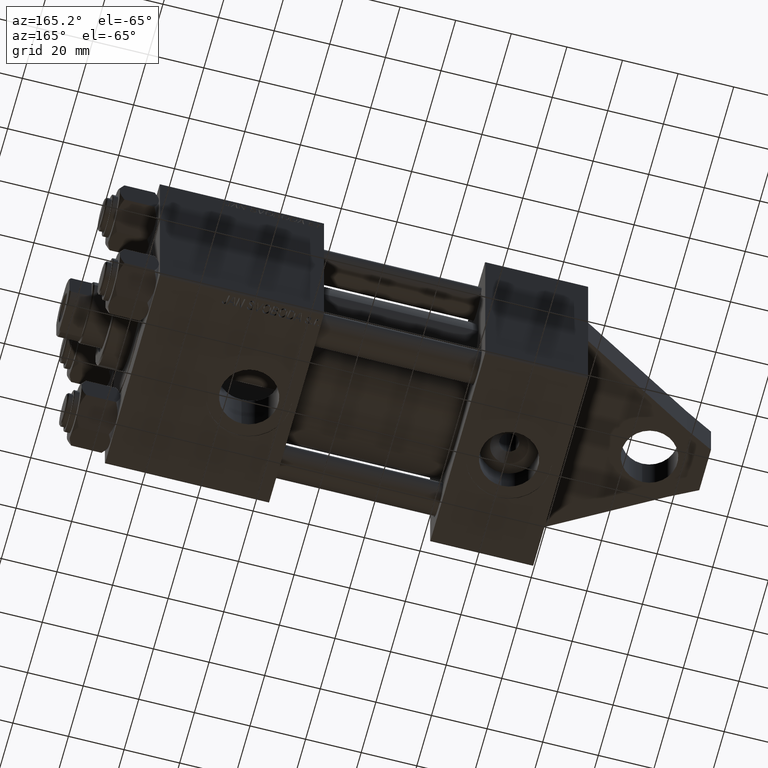
[diagram: clean part render]
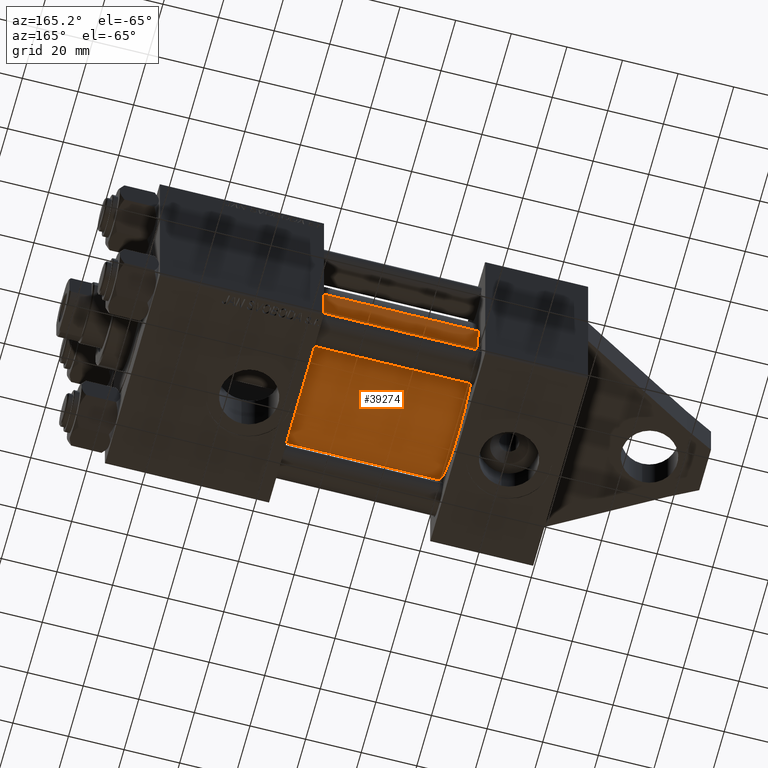
[diagram: same view with one face highlighted and labeled with its STEP entity id]
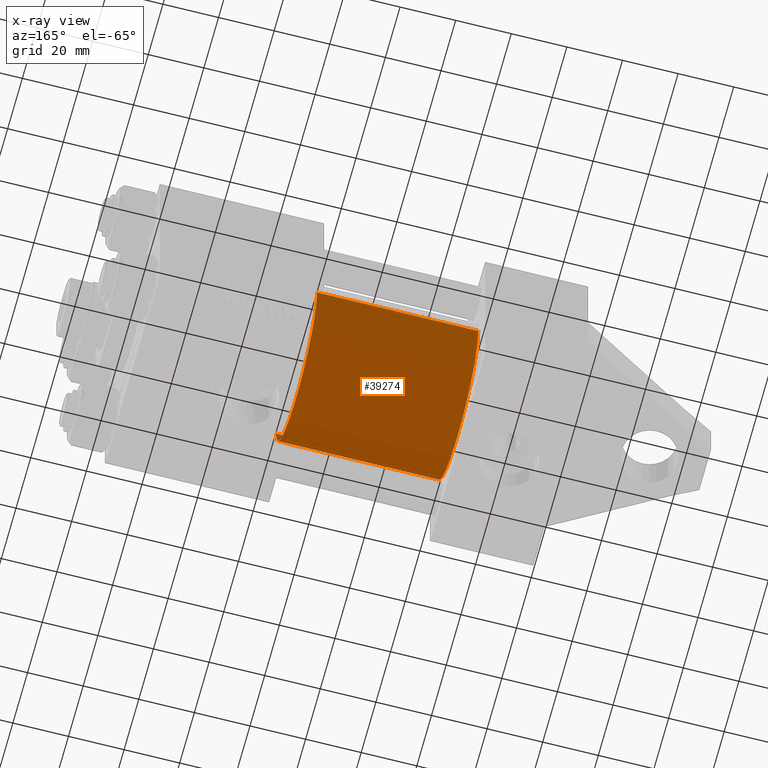
[diagram: x-ray of the same camera — body ghosted, the highlighted face saturated]
A machine part, auxiliary view. The second image highlights one B-rep face of the part: STEP entity #39274.
The next image is the same camera in x-ray: the body ghosted, the highlighted face saturated — about 0% of this face is hidden behind the body in this view.
In plain terms, the highlighted cylindrical surface (partial cylindrical patch) has radius 28 mm, axis along (-1, -0, 0).
Its self-contained STEP definition (entity closure, byte-faithful):
#2652 = DIRECTION ( 'NONE',  ( 1.000000000000000000, 0.000000000000000000, 0.000000000000000000 ) ) ;
#2653 = VERTEX_POINT ( 'NONE', #9353 ) ;
#3572 = VECTOR ( 'NONE', #24260, 1000.000000000000000 ) ;
#3636 = AXIS2_PLACEMENT_3D ( 'NONE', #7685, #11633, #7904 ) ;
#6784 = AXIS2_PLACEMENT_3D ( 'NONE', #34537, #2652, #16842 ) ;
#6834 = ORIENTED_EDGE ( 'NONE', *, *, #23418, .T. ) ;
#7685 = CARTESIAN_POINT ( 'NONE',  ( 95.00000000000000000, -2.602085213965210642E-15, 0.000000000000000000 ) ) ;
#7904 = DIRECTION ( 'NONE',  ( 0.000000000000000000, 0.000000000000000000, 1.000000000000000000 ) ) ;
#8375 = CYLINDRICAL_SURFACE ( 'NONE', #3636, 28.00000000000000000 ) ;
#9353 = CARTESIAN_POINT ( 'NONE',  ( 37.00000000000000000, -2.602085213965210642E-15, 28.00000000000000000 ) ) ;
#11259 = DIRECTION ( 'NONE',  ( -1.000000000000000000, -0.000000000000000000, -0.000000000000000000 ) ) ;
#11484 = CARTESIAN_POINT ( 'NONE',  ( 95.00000000000000000, -2.602085213965210642E-15, 28.00000000000000000 ) ) ;
#11633 = DIRECTION ( 'NONE',  ( -1.000000000000000000, -0.000000000000000000, -0.000000000000000000 ) ) ;
#13098 = LINE ( 'NONE', #44989, #3572 ) ;
#14734 = LINE ( 'NONE', #11484, #38849 ) ;
#14939 = DIRECTION ( 'NONE',  ( 1.000000000000000000, -0.000000000000000000, 0.000000000000000000 ) ) ;
#16228 = EDGE_CURVE ( 'NONE', #25371, #22889, #30588, .T. ) ;
#16842 = DIRECTION ( 'NONE',  ( 0.000000000000000000, 0.000000000000000000, -1.000000000000000000 ) ) ;
#18335 = CARTESIAN_POINT ( 'NONE',  ( 95.00000000000000000, -2.602085213965210642E-15, 28.00000000000000000 ) ) ;
#21681 = ORIENTED_EDGE ( 'NONE', *, *, #42231, .F. ) ;
#22889 = VERTEX_POINT ( 'NONE', #33230 ) ;
#23418 = EDGE_CURVE ( 'NONE', #25371, #2653, #14734, .T. ) ;
#24260 = DIRECTION ( 'NONE',  ( -1.000000000000000000, -0.000000000000000000, -0.000000000000000000 ) ) ;
#25198 = CARTESIAN_POINT ( 'NONE',  ( 37.00000000000000000, -2.602085213965210642E-15, 0.000000000000000000 ) ) ;
#25371 = VERTEX_POINT ( 'NONE', #18335 ) ;
#25919 = AXIS2_PLACEMENT_3D ( 'NONE', #25198, #14939, #43349 ) ;
#29745 = EDGE_LOOP ( 'NONE', ( #21681, #45326, #6834, #34989 ) ) ;
#29862 = VERTEX_POINT ( 'NONE', #36921 ) ;
#30588 = CIRCLE ( 'NONE', #6784, 28.00000000000000000 ) ;
#33230 = CARTESIAN_POINT ( 'NONE',  ( 95.00000000000000000, 8.269258236473776482E-16, -28.00000000000000000 ) ) ;
#34537 = CARTESIAN_POINT ( 'NONE',  ( 95.00000000000000000, -2.602085213965210642E-15, 0.000000000000000000 ) ) ;
#34989 = ORIENTED_EDGE ( 'NONE', *, *, #43329, .T. ) ;
#36921 = CARTESIAN_POINT ( 'NONE',  ( 37.00000000000000000, 8.269258236473776482E-16, -28.00000000000000000 ) ) ;
#38849 = VECTOR ( 'NONE', #11259, 1000.000000000000000 ) ;
#39274 = ADVANCED_FACE ( 'NONE', ( #43986 ), #8375, .T. ) ;
#42231 = EDGE_CURVE ( 'NONE', #22889, #29862, #13098, .T. ) ;
#43329 = EDGE_CURVE ( 'NONE', #2653, #29862, #45969, .T. ) ;
#43349 = DIRECTION ( 'NONE',  ( 0.000000000000000000, 0.000000000000000000, 1.000000000000000000 ) ) ;
#43986 = FACE_OUTER_BOUND ( 'NONE', #29745, .T. ) ;
#44989 = CARTESIAN_POINT ( 'NONE',  ( 95.00000000000000000, 8.269258236473776482E-16, -28.00000000000000000 ) ) ;
#45326 = ORIENTED_EDGE ( 'NONE', *, *, #16228, .F. ) ;
#45969 = CIRCLE ( 'NONE', #25919, 28.00000000000000000 ) ;